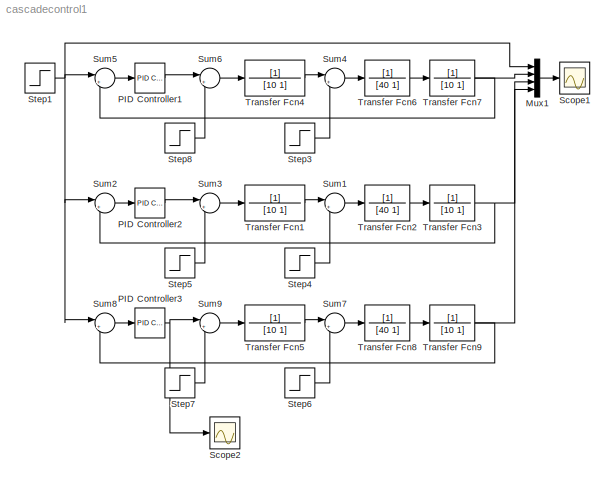
MODEL cascadecontrol1
KIND model
BLOCK [Mux] Mux1
  DisplayOption = bar
  Ports = [4, 1]
BLOCK [Reference] PID Controller1  REF=simulink_extras/Additional\nLinear/PID Controller
  D = 30
  I = 0.05
  P = 4
  Ports = [1, 1]
  ShowPortLabels = on
  SourceBlock = simulink_extras/Additional\nLinear/PID Controller
  SourceType = PID Controller
BLOCK [Reference] PID Controller2  REF=simulink_extras/Additional\nLinear/PID Controller
  D = 20
  I = 0.05
  P = 4
  Ports = [1, 1]
  ShowPortLabels = on
  SourceBlock = simulink_extras/Additional\nLinear/PID Controller
  SourceType = PID Controller
BLOCK [Reference] PID Controller3  REF=simulink_extras/Additional\nLinear/PID Controller
  D = 30
  I = 0.05
  P = 4
  Ports = [1, 1]
  ShowPortLabels = on
  SourceBlock = simulink_extras/Additional\nLinear/PID Controller
  SourceType = PID Controller
BLOCK [Scope] Scope1
  DataFormat = StructureWithTime
  NumInputPorts = 1
  Ports = [1]
  ZoomMode = yonly
BLOCK [Scope] Scope2
  DataFormat = StructureWithTime
  NumInputPorts = 1
  Ports = [1]
  SaveName = ScopeData1
  ZoomMode = yonly
BLOCK [Step] Step1
  SampleTime = 0
  Time = 0
BLOCK [Step] Step3
  After = 0
  SampleTime = 0
  Time = 0
BLOCK [Step] Step4
  After = 0
  SampleTime = 0
  Time = 0
BLOCK [Step] Step5
  After = 0
  SampleTime = 0
  Time = 0
BLOCK [Step] Step6
  After = 0
  SampleTime = 0
  Time = 0
BLOCK [Step] Step7
  After = 0
  SampleTime = 0
  Time = 0
BLOCK [Step] Step8
  After = 0
  SampleTime = 0
  Time = 0
BLOCK [Sum] Sum1
  IconShape = round
  InputSameDT = off
  Inputs = |++
  OutDataTypeMode = Inherit via internal rule
  Ports = [2, 1]
  SaturateOnIntegerOverflow = off
BLOCK [Sum] Sum2
  IconShape = round
  InputSameDT = off
  Inputs = |+-
  OutDataTypeMode = Inherit via internal rule
  Ports = [2, 1]
  SaturateOnIntegerOverflow = off
BLOCK [Sum] Sum3
  IconShape = round
  InputSameDT = off
  Inputs = |++
  OutDataTypeMode = Inherit via internal rule
  Ports = [2, 1]
  SaturateOnIntegerOverflow = off
BLOCK [Sum] Sum4
  IconShape = round
  InputSameDT = off
  Inputs = |++
  OutDataTypeMode = Inherit via internal rule
  Ports = [2, 1]
  SaturateOnIntegerOverflow = off
BLOCK [Sum] Sum5
  IconShape = round
  InputSameDT = off
  Inputs = |+-
  OutDataTypeMode = Inherit via internal rule
  Ports = [2, 1]
  SaturateOnIntegerOverflow = off
BLOCK [Sum] Sum6
  IconShape = round
  InputSameDT = off
  Inputs = |++
  OutDataTypeMode = Inherit via internal rule
  Ports = [2, 1]
  SaturateOnIntegerOverflow = off
BLOCK [Sum] Sum7
  IconShape = round
  InputSameDT = off
  Inputs = |++
  OutDataTypeMode = Inherit via internal rule
  Ports = [2, 1]
  SaturateOnIntegerOverflow = off
BLOCK [Sum] Sum8
  IconShape = round
  InputSameDT = off
  Inputs = |+-
  OutDataTypeMode = Inherit via internal rule
  Ports = [2, 1]
  SaturateOnIntegerOverflow = off
BLOCK [Sum] Sum9
  IconShape = round
  InputSameDT = off
  Inputs = |++
  OutDataTypeMode = Inherit via internal rule
  Ports = [2, 1]
  SaturateOnIntegerOverflow = off
BLOCK [TransferFcn] Transfer Fcn1
  Denominator = [10 1]
BLOCK [TransferFcn] Transfer Fcn2
  Denominator = [40 1]
BLOCK [TransferFcn] Transfer Fcn3
  Denominator = [10 1]
BLOCK [TransferFcn] Transfer Fcn4
  Denominator = [10 1]
BLOCK [TransferFcn] Transfer Fcn5
  Denominator = [10 1]
BLOCK [TransferFcn] Transfer Fcn6
  Denominator = [40 1]
BLOCK [TransferFcn] Transfer Fcn7
  Denominator = [10 1]
BLOCK [TransferFcn] Transfer Fcn8
  Denominator = [40 1]
BLOCK [TransferFcn] Transfer Fcn9
  Denominator = [10 1]
LINE Mux1:1 -> Scope1:1
LINE PID Controller1:1 -> Sum6:1
LINE PID Controller2:1 -> Sum3:1
NET PID Controller3:1 -> Scope2:1, Sum9:1
NET Step1:1 -> Mux1:1, Sum2:1, Sum5:1, Sum8:1
LINE Step3:1 -> Sum4:2
LINE Step4:1 -> Sum1:2
LINE Step5:1 -> Sum3:2
LINE Step6:1 -> Sum7:2
LINE Step7:1 -> Sum9:2
LINE Step8:1 -> Sum6:2
LINE Sum1:1 -> Transfer Fcn2:1
LINE Sum2:1 -> PID Controller2:1
LINE Sum3:1 -> Transfer Fcn1:1
LINE Sum4:1 -> Transfer Fcn6:1
LINE Sum5:1 -> PID Controller1:1
LINE Sum6:1 -> Transfer Fcn4:1
LINE Sum7:1 -> Transfer Fcn8:1
LINE Sum8:1 -> PID Controller3:1
LINE Sum9:1 -> Transfer Fcn5:1
LINE Transfer Fcn1:1 -> Sum1:1
LINE Transfer Fcn2:1 -> Transfer Fcn3:1
NET Transfer Fcn3:1 -> Mux1:3, Sum2:2
LINE Transfer Fcn4:1 -> Sum4:1
LINE Transfer Fcn5:1 -> Sum7:1
LINE Transfer Fcn6:1 -> Transfer Fcn7:1
NET Transfer Fcn7:1 -> Mux1:2, Sum5:2
LINE Transfer Fcn8:1 -> Transfer Fcn9:1
NET Transfer Fcn9:1 -> Mux1:4, Sum8:2
note: NET lines group one-source signal fan-out (src -> all destinations, sorted); 1:1 wires keep LINE
